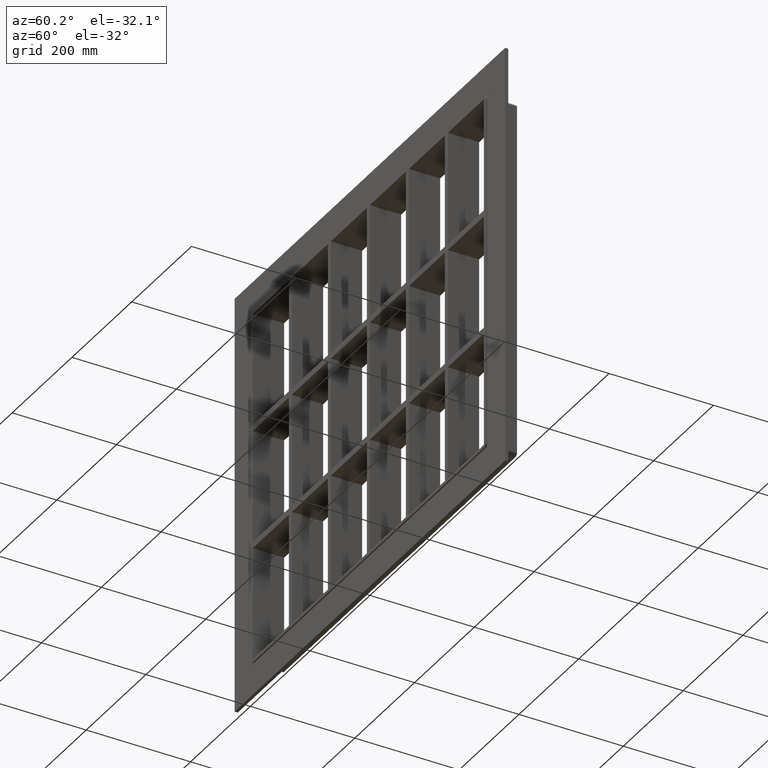
[diagram: clean part render]
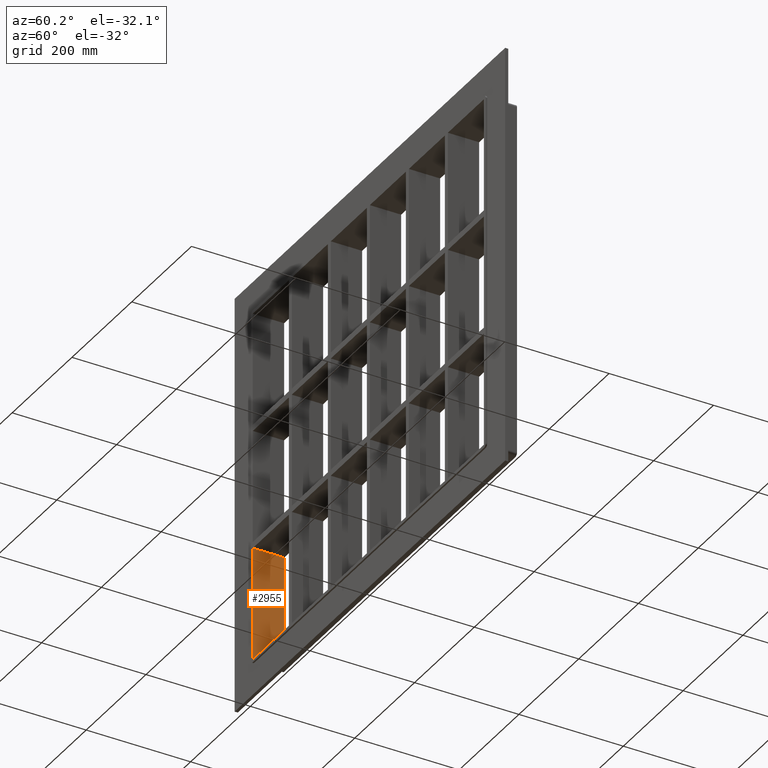
[diagram: same view with one face highlighted and labeled with its STEP entity id]
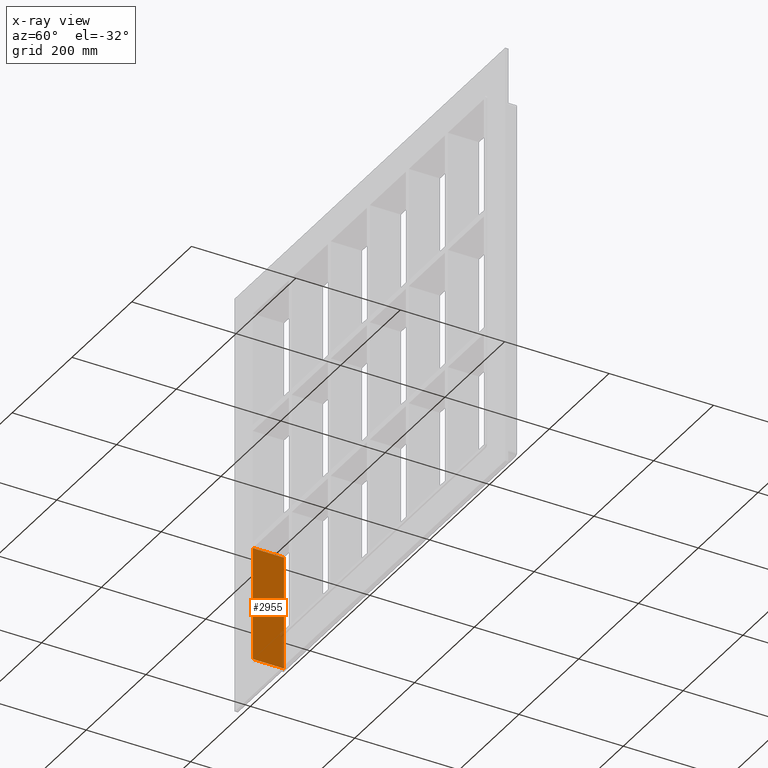
[diagram: x-ray of the same camera — body ghosted, the highlighted face saturated]
A machine part, auxiliary view. The second image highlights one B-rep face of the part: STEP entity #2955.
The next image is the same camera in x-ray: the body ghosted, the highlighted face saturated — about 2% of this face is hidden behind the body in this view.
In plain terms, the highlighted planar face has unit normal (-1, 0, 0).
Its self-contained STEP definition (entity closure, byte-faithful):
#1248=CARTESIAN_POINT('',(-386.49999999999972,57.0,-121.00000000000932));
#1249=VERTEX_POINT('',#1248);
#1250=CARTESIAN_POINT('',(-386.50000000000006,57.0,-339.00000000000006));
#1251=VERTEX_POINT('',#1250);
#1252=CARTESIAN_POINT('',(-386.50000000000006,57.0,-121.00000000000932));
#1253=DIRECTION('',(0.0,0.0,-1.0));
#1254=VECTOR('',#1253,217.99999999999073);
#1255=LINE('',#1252,#1254);
#1256=EDGE_CURVE('',#1249,#1251,#1255,.T.);
#2295=CARTESIAN_POINT('',(-386.49999999999972,-3.0,-121.00000000000932));
#2296=VERTEX_POINT('',#2295);
#2311=CARTESIAN_POINT('',(-386.50000000000006,-3.0,-339.00000000000006));
#2312=VERTEX_POINT('',#2311);
#2319=CARTESIAN_POINT('',(-386.50000000000006,-3.0,-339.00000000000006));
#2320=DIRECTION('',(0.0,0.0,1.0));
#2321=VECTOR('',#2320,217.99999999999073);
#2322=LINE('',#2319,#2321);
#2323=EDGE_CURVE('',#2312,#2296,#2322,.T.);
#2523=CARTESIAN_POINT('',(-386.50000000000006,57.000000000000007,-121.00000000000935));
#2524=DIRECTION('',(0.0,-1.0,0.0));
#2525=VECTOR('',#2524,60.000000000000007);
#2526=LINE('',#2523,#2525);
#2527=EDGE_CURVE('',#1249,#2296,#2526,.T.);
#2634=CARTESIAN_POINT('',(-386.50000000000006,-3.0,-339.00000000000006));
#2635=DIRECTION('',(0.0,1.0,0.0));
#2636=VECTOR('',#2635,60.0);
#2637=LINE('',#2634,#2636);
#2638=EDGE_CURVE('',#2312,#1251,#2637,.T.);
#2944=CARTESIAN_POINT('',(-386.50000000000006,0.0,-339.00000000000006));
#2945=DIRECTION('',(-1.0,0.0,0.0));
#2946=DIRECTION('',(0.0,0.0,1.0));
#2947=AXIS2_PLACEMENT_3D('',#2944,#2945,#2946);
#2948=PLANE('',#2947);
#2949=ORIENTED_EDGE('',*,*,#2527,.T.);
#2950=ORIENTED_EDGE('',*,*,#2323,.F.);
#2951=ORIENTED_EDGE('',*,*,#2638,.T.);
#2952=ORIENTED_EDGE('',*,*,#1256,.F.);
#2953=EDGE_LOOP('',(#2949,#2950,#2951,#2952));
#2954=FACE_OUTER_BOUND('',#2953,.T.);
#2955=ADVANCED_FACE('',(#2954),#2948,.F.);